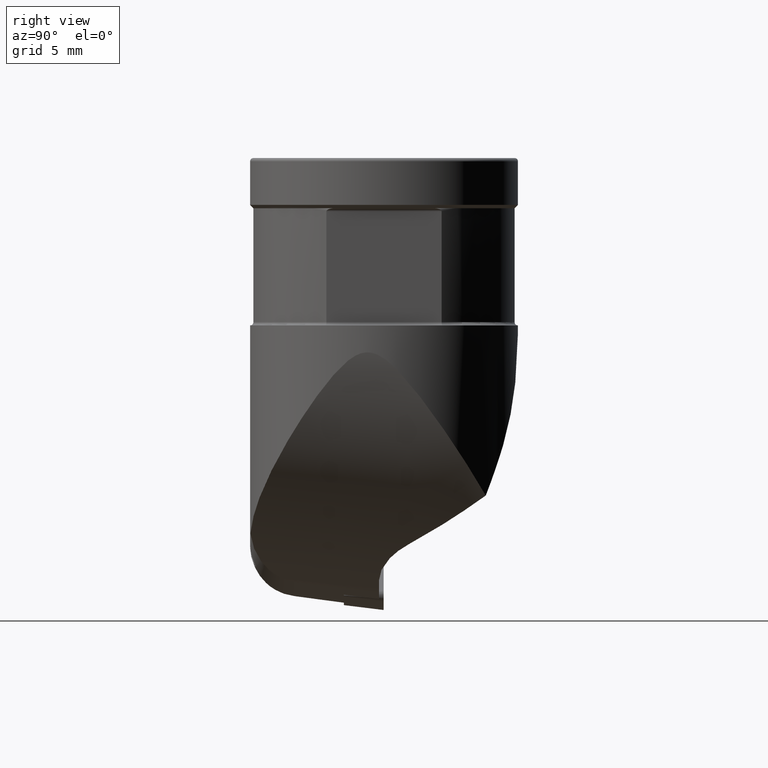
[diagram: clean part render]
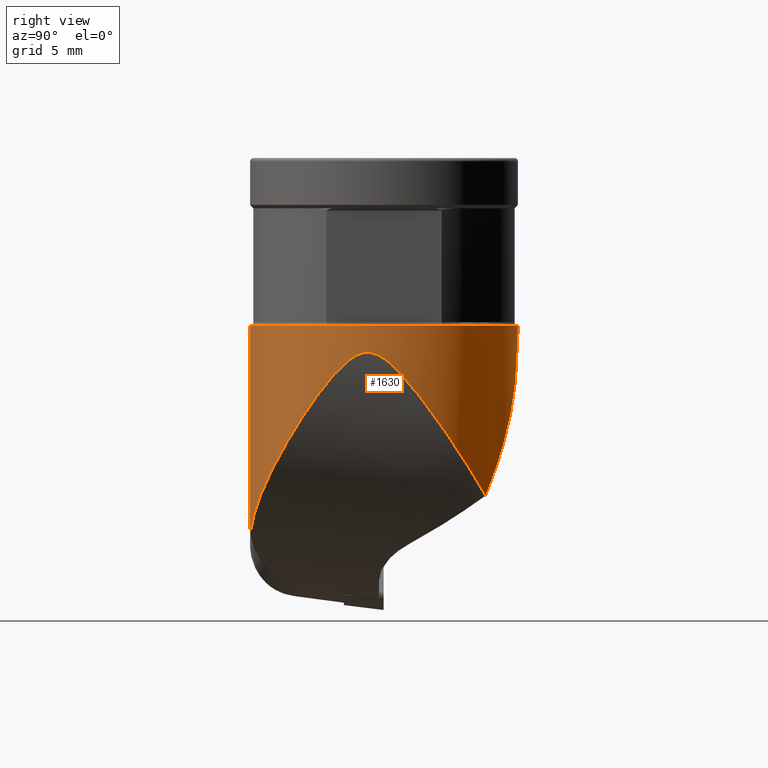
[diagram: same view with one face highlighted and labeled with its STEP entity id]
A machine part, right view. The second image highlights one B-rep face of the part: STEP entity #1630.
In plain terms, the highlighted cylindrical surface (partial cylindrical patch) has radius 8 mm, axis along (0, 0, 1).
Its self-contained STEP definition (entity closure, byte-faithful):
#840=VERTEX_POINT('NONE',#2203);
#962=EDGE_CURVE('NONE',#1566,#1420,#2338,.T.);
#972=VERTEX_POINT('NONE',#2348);
#1106=EDGE_CURVE('NONE',#840,#1194,#2497,.F.);
#1112=VERTEX_POINT('NONE',#2503);
#1156=VERTEX_POINT('NONE',#2553);
#1188=VERTEX_POINT('NONE',#2588);
#1194=VERTEX_POINT('NONE',#2595);
#1228=EDGE_CURVE('NONE',#1194,#1566,#2630,.T.);
#1230=EDGE_CURVE('NONE',#1188,#1112,#2632,.T.);
#1286=EDGE_CURVE('NONE',#1920,#1420,#2691,.F.);
#1420=VERTEX_POINT('NONE',#2839);
#1566=VERTEX_POINT('NONE',#2998);
#1606=EDGE_CURVE('NONE',#1156,#1188,#3042,.F.);
#1630=ADVANCED_FACE('NONE',(#3069),#3070,.T.);
#1920=VERTEX_POINT('NONE',#3386);
#1970=EDGE_CURVE('NONE',#972,#1156,#3442,.F.);
#1982=EDGE_CURVE('NONE',#840,#972,#3454,.T.);
#2000=EDGE_CURVE('NONE',#1112,#1920,#3472,.F.);
#2203=CARTESIAN_POINT('',(-1.22464679914735E-015,-8.0,-10.0));
#2338=CIRCLE('',#4112,8.0);
#2348=CARTESIAN_POINT('',(-6.03961325396085E-014,-8.0,-22.1106871849601));
#2497=CIRCLE('',#4496,8.0);
#2503=CARTESIAN_POINT('',(3.64510583720193,7.12132034355964,-17.1318157464279));
#2553=CARTESIAN_POINT('',(0.55458297902174,-7.98075420742798,-22.4213586460506));
#2588=CARTESIAN_POINT('',(5.20100894154422,6.07861053119683,-20.1623332090332));
#2595=CARTESIAN_POINT('',(7.2,-3.48711915483254,-10.0));
#2630=CIRCLE('',#5236,8.0);
#2632=ELLIPSE('',#5239,15.9999999999999,8.0);
#2691=LINE('',#5330,#5331);
#2839=CARTESIAN_POINT('',(-2.44961716089451E-016,8.0,-10.0));
#2998=CARTESIAN_POINT('',(7.2,3.48711915483253,-10.0));
#3042=B_SPLINE_CURVE_WITH_KNOTS('',3,(#6301,#6302,#6303,#6304,#6305,#6306,#6307,#6308,#6309,#6310,#6311,#6312,#6313,#6314,#6315,#6316,#6317,#6318,#6319,#6320,#6321,#6322,#6323,#6324,#6325,#6326,#6327,#6328,#6329,#6330,#6331,#6332,#6333,#6334,#6335,#6336,#6337,#6338,#6339,#6340,#6341,#6342,#6343,#6344,#6345,#6346,#6347,#6348,#6349,#6350),.UNSPECIFIED.,.F.,.F.,(4,2,2,2,2,2,2,2,2,2,2,2,2,2,2,2,2,2,2,2,2,2,2,2,4),(2.14365143602452,4.28730287204903,6.43095430807355,8.57460574409807,10.1081432311044,11.6416807181107,13.1752182051169,14.7087556921232,15.4439462711411,16.1791368501589,16.9143274291768,17.2819227186857,17.6495180081946,18.1023405861206,18.5551631640467,19.4608083198987,20.3664534757508,21.2720986316028,22.9529021203172,24.6337056090317,26.3145090977461,27.9953125864605,30.2474823134333,32.4996520404062,34.751821767379),.UNSPECIFIED.);
#3069=FACE_OUTER_BOUND('',#6398,.T.);
#3070=CYLINDRICAL_SURFACE('',#6399,8.0);
#3386=CARTESIAN_POINT('',(0.0,8.0,-10.4867099092259));
#3442=B_SPLINE_CURVE_WITH_KNOTS('',3,(#7420,#7421,#7422,#7423,#7424,#7425,#7426,#7427,#7428,#7429),.UNSPECIFIED.,.F.,.F.,(4,2,2,2,4),(0.80883816967155,1.6176763393431,2.42651450901465,3.2353526786862,3.24079108830943),.UNSPECIFIED.);
#3454=LINE('',#7449,#7450);
#3472=B_SPLINE_CURVE_WITH_KNOTS('',3,(#7473,#7474,#7475,#7476,#7477,#7478,#7479,#7480,#7481,#7482,#7483,#7484),.UNSPECIFIED.,.F.,.F.,(4,2,2,2,2,4),(0.0,0.0100422171078194,2.5385808981819,5.06711957925598,7.59565826033006,8.8599276008671),.UNSPECIFIED.);
#4112=AXIS2_PLACEMENT_3D('',#7935,#7936,#7937);
#4496=AXIS2_PLACEMENT_3D('',#8121,#8122,#8123);
#5236=AXIS2_PLACEMENT_3D('',#8294,#8295,#8296);
#5239=AXIS2_PLACEMENT_3D('',#8297,#8298,#8299);
#5330=CARTESIAN_POINT('',(9.34111500066665E-017,8.0,0.762759924508053));
#5331=VECTOR('',#8354,1.0);
#6301=CARTESIAN_POINT('',(2.45976276855962,7.61246130515012,-23.3420075574095));
#6302=CARTESIAN_POINT('',(3.00053868582336,7.43772406665606,-22.853805419274));
#6303=CARTESIAN_POINT('',(3.5098185337197,7.20905428653497,-22.3286859406811));
#6304=CARTESIAN_POINT('',(4.4432321980332,6.67435250208061,-21.2357587254567));
#6305=CARTESIAN_POINT('',(4.86777273459995,6.36820059627173,-20.6675581837994));
#6306=CARTESIAN_POINT('',(5.62166593656272,5.71367328007365,-19.525314228646));
#6307=CARTESIAN_POINT('',(5.95107068621037,5.36533744244295,-18.9512825163417));
#6308=CARTESIAN_POINT('',(6.4344870701081,4.76453567048123,-17.9985186508231));
#6309=CARTESIAN_POINT('',(6.6277158781408,4.49300525680249,-17.5790890951673));
#6310=CARTESIAN_POINT('',(6.98231110548791,3.9193169852956,-16.7173615377407));
#6311=CARTESIAN_POINT('',(7.14370256282026,3.6172220263616,-16.2750319661297));
#6312=CARTESIAN_POINT('',(7.42615224838701,2.99483746977506,-15.3908014257485));
#6313=CARTESIAN_POINT('',(7.54726990403949,2.6746343013159,-14.948785063646));
#6314=CARTESIAN_POINT('',(7.74650598803763,2.02647396832866,-14.0912472115512));
#6315=CARTESIAN_POINT('',(7.82471603779617,1.69885007506982,-13.6754951594104));
#6316=CARTESIAN_POINT('',(7.90952651057859,1.21045208924201,-13.1043755613228));
#6317=CARTESIAN_POINT('',(7.93397319857451,1.041101951432,-12.9139019713079));
#6318=CARTESIAN_POINT('',(7.97249498759948,0.686401982640113,-12.5437520549802));
#6319=CARTESIAN_POINT('',(7.98660356596518,0.501164827109318,-12.3639712569719));
#6320=CARTESIAN_POINT('',(8.00146306452718,0.116674490214837,-12.0409465894711));
#6321=CARTESIAN_POINT('',(8.00232090447879,-0.0814595340657301,-11.8980372251744));
#6322=CARTESIAN_POINT('',(7.99092278806465,-0.39509078964057,-11.7371419550067));
#6323=CARTESIAN_POINT('',(7.98499305035901,-0.502377498216067,-11.6925930832955));
#6324=CARTESIAN_POINT('',(7.96783768499656,-0.725299792074239,-11.6284144763509));
#6325=CARTESIAN_POINT('',(7.95662214705194,-0.840935385540843,-11.6087820729217));
#6326=CARTESIAN_POINT('',(7.92372440027112,-1.11236958456096,-11.6034445543763));
#6327=CARTESIAN_POINT('',(7.90284347911594,-1.25003937430893,-11.6267941510837));
#6328=CARTESIAN_POINT('',(7.85714513418151,-1.51089505242677,-11.7064095794369));
#6329=CARTESIAN_POINT('',(7.83229532446813,-1.63404006358519,-11.7627907036367));
#6330=CARTESIAN_POINT('',(7.7519386256384,-1.99178267836173,-11.9658629209798));
#6331=CARTESIAN_POINT('',(7.69082363848364,-2.21423905641737,-12.1452239300561));
#6332=CARTESIAN_POINT('',(7.55275563429909,-2.64716927393181,-12.5494935271526));
#6333=CARTESIAN_POINT('',(7.47625133444944,-2.855142826937,-12.773489933073));
#6334=CARTESIAN_POINT('',(7.31220163249271,-3.25236557211902,-13.2330049524998));
#6335=CARTESIAN_POINT('',(7.22464613488565,-3.4414253396749,-13.4686836743736));
#6336=CARTESIAN_POINT('',(6.96988217602046,-3.94395743864991,-14.1212621433759));
#6337=CARTESIAN_POINT('',(6.7785105068828,-4.26577287453664,-14.5730137269029));
#6338=CARTESIAN_POINT('',(6.34265668182028,-4.89037105214459,-15.4970518714124));
#6339=CARTESIAN_POINT('',(6.09814510695979,-5.19289514536266,-15.9694993625613));
#6340=CARTESIAN_POINT('',(5.56149358607515,-5.76396688479918,-16.9070654887049));
#6341=CARTESIAN_POINT('',(5.2692449273404,-6.03246329848069,-17.3723616512344));
#6342=CARTESIAN_POINT('',(4.65032597675047,-6.52150472277513,-18.2715648699162));
#6343=CARTESIAN_POINT('',(4.32362193913011,-6.74195115220724,-18.7055023101262));
#6344=CARTESIAN_POINT('',(3.54444898143857,-7.19040390898626,-19.6596916087089));
#6345=CARTESIAN_POINT('',(3.04138015864477,-7.42189954143574,-20.2147404719356));
#6346=CARTESIAN_POINT('',(1.94205723123523,-7.78222331327528,-21.2899965783884));
#6347=CARTESIAN_POINT('',(1.34570168701259,-7.91088454790722,-21.8101560327753));
#6348=CARTESIAN_POINT('',(0.0970121048723007,-8.02393822847742,-22.776997081067));
#6349=CARTESIAN_POINT('',(-0.556530393061846,-8.00817398953632,-23.2245487827528));
#6350=CARTESIAN_POINT('',(-1.21262043294905,-7.90756294224678,-23.6250484825822));
#6398=EDGE_LOOP('',(#8779,#8780,#8781,#8782,#8783,#8784,#8785,#8786,#8787));
#6399=AXIS2_PLACEMENT_3D('',#8788,#8789,#8790);
#7420=CARTESIAN_POINT('',(2.25525284153591,-7.67553481007963,-23.3513804560386));
#7421=CARTESIAN_POINT('',(2.00849693785488,-7.74803750423553,-23.2211684692966));
#7422=CARTESIAN_POINT('',(1.75473658702287,-7.80949599676472,-23.0843107744863));
#7423=CARTESIAN_POINT('',(1.24498565020325,-7.90679066705925,-22.80555922016));
#7424=CARTESIAN_POINT('',(0.988909984132098,-7.94265035544006,-22.6636416003171));
#7425=CARTESIAN_POINT('',(0.486529749495619,-7.98917557859627,-22.3835556715061));
#7426=CARTESIAN_POINT('',(0.24021759666289,-7.99984967303429,-22.2454023883389));
#7427=CARTESIAN_POINT('',(0.00347850521716309,-7.99999940000009,-22.1126379482129));
#7428=CARTESIAN_POINT('',(0.00158113876473502,-8.0,-22.1115738955535));
#7429=CARTESIAN_POINT('',(-6.03961325396085E-014,-8.0,-22.1106871849601));
#7449=CARTESIAN_POINT('',(9.34111500066665E-017,-7.99999999999984,0.762759924508054));
#7450=VECTOR('',#9238,1.0);
#7473=CARTESIAN_POINT('',(0.0,8.0,-10.4867099092259));
#7474=CARTESIAN_POINT('',(0.00158113868325513,8.0,-10.4896603541758));
#7475=CARTESIAN_POINT('',(0.00347850509275644,7.99999940000017,-10.4932008880704));
#7476=CARTESIAN_POINT('',(0.403175962091396,7.99974660910221,-11.2390464103026));
#7477=CARTESIAN_POINT('',(0.820153631897081,7.96955327263161,-12.0173403662127));
#7478=CARTESIAN_POINT('',(1.67315813163025,7.83498393824098,-13.5975754572111));
#7479=CARTESIAN_POINT('',(2.10916237873382,7.73074517786878,-14.3995404661125));
#7480=CARTESIAN_POINT('',(2.98414059682106,7.43692652214816,-15.9788337985795));
#7481=CARTESIAN_POINT('',(3.4227856851179,7.24779874923962,-16.7559259534344));
#7482=CARTESIAN_POINT('',(4.07463103406344,6.88904158874318,-17.8651093159242));
#7483=CARTESIAN_POINT('',(4.29090654190144,6.75691638211742,-18.2253574737484));
#7484=CARTESIAN_POINT('',(4.50605415341256,6.6102553631848,-18.5724505476075));
#7935=CARTESIAN_POINT('',(-1.22464679914735E-015,0.0,-10.0));
#7936=DIRECTION('',(1.22464679914735E-016,0.0,1.0));
#7937=DIRECTION('',(0.0,-1.0,0.0));
#8121=CARTESIAN_POINT('',(-1.22464679914735E-015,0.0,-10.0));
#8122=DIRECTION('',(-1.22464679914735E-016,-0.0,-1.0));
#8123=DIRECTION('',(0.0,-1.0,0.0));
#8294=CARTESIAN_POINT('',(-1.22464679914735E-015,0.0,-10.0));
#8295=DIRECTION('',(1.22464679914735E-016,0.0,1.0));
#8296=DIRECTION('',(0.0,-1.0,0.0));
#8297=CARTESIAN_POINT('',(-2.88499570811593E-015,0.0,-23.5577777210913));
#8298=DIRECTION('',(0.500000000000003,-0.707106781186544,0.500000000000001));
#8299=DIRECTION('',(0.288675134594816,-0.408248290463863,-0.866025403784438));
#8354=DIRECTION('',(-1.22464679914735E-016,0.0,-1.0));
#8779=ORIENTED_EDGE('',*,*,#1982,.T.);
#8780=ORIENTED_EDGE('',*,*,#1970,.T.);
#8781=ORIENTED_EDGE('',*,*,#1606,.T.);
#8782=ORIENTED_EDGE('',*,*,#1230,.T.);
#8783=ORIENTED_EDGE('',*,*,#2000,.T.);
#8784=ORIENTED_EDGE('',*,*,#1286,.T.);
#8785=ORIENTED_EDGE('',*,*,#962,.F.);
#8786=ORIENTED_EDGE('',*,*,#1228,.F.);
#8787=ORIENTED_EDGE('',*,*,#1106,.F.);
#8788=CARTESIAN_POINT('',(9.34111500066665E-017,0.0,0.762759924508054));
#8789=DIRECTION('',(1.22464679914735E-016,0.0,1.0));
#8790=DIRECTION('',(0.0,-1.0,0.0));
#9238=DIRECTION('',(-1.22464679914735E-016,0.0,-1.0));